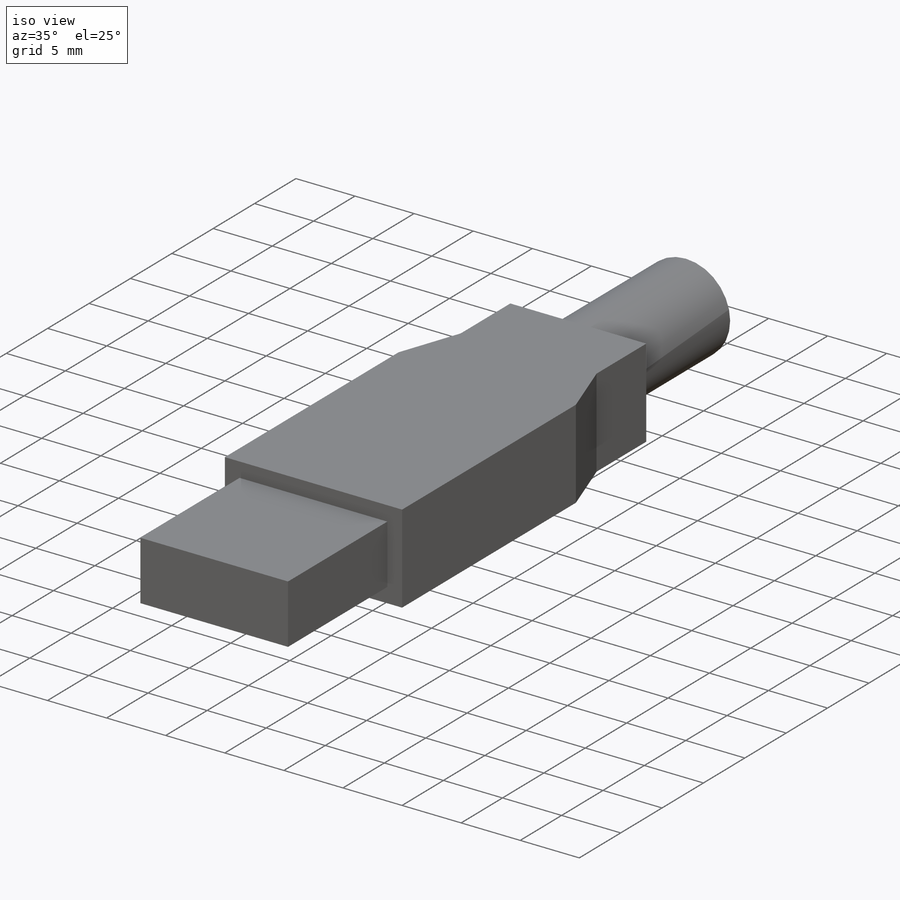
[diagram: iso view]
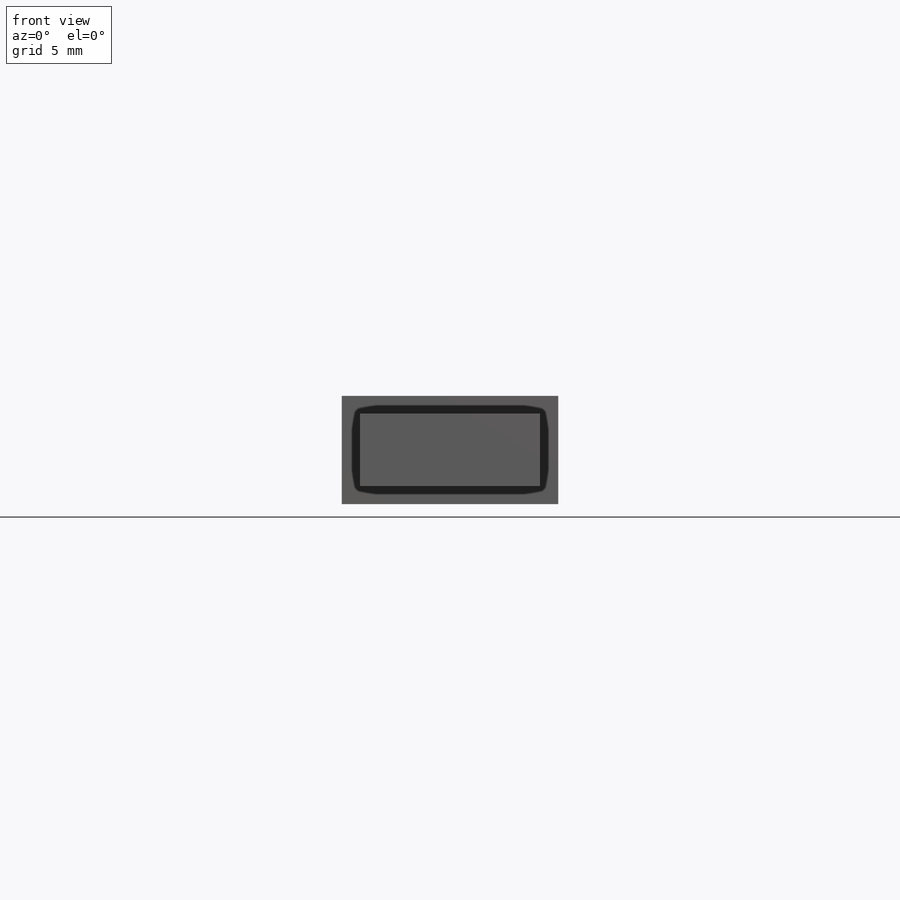
[diagram: front view]
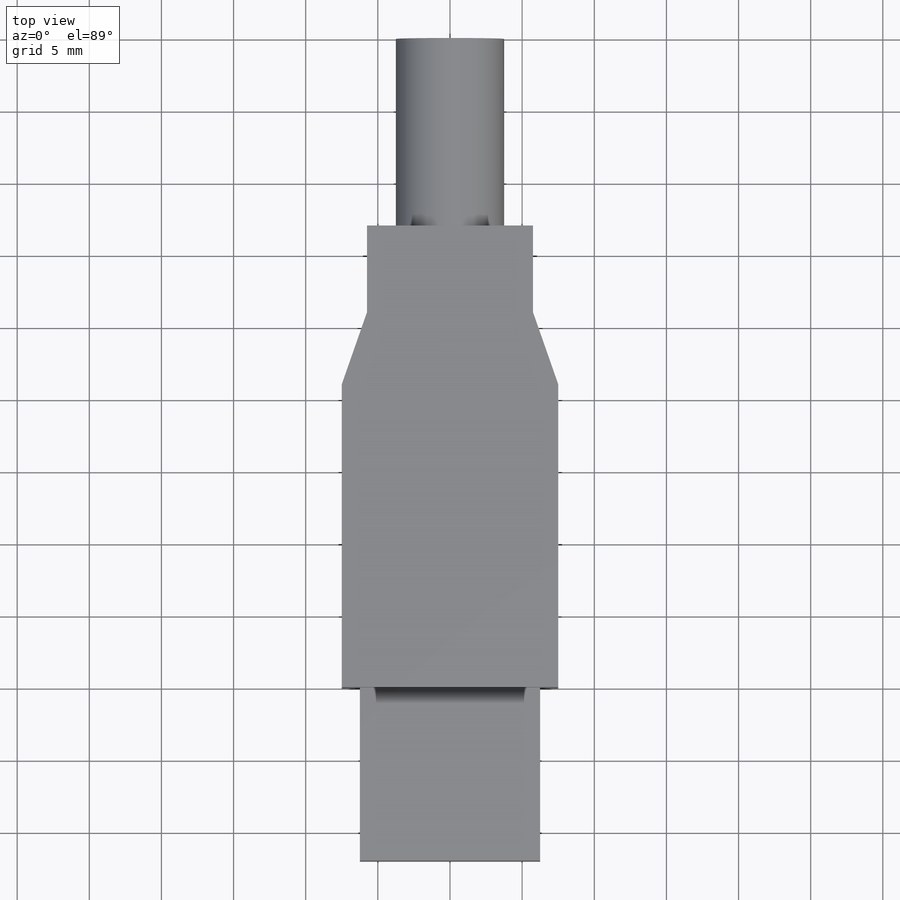
[diagram: top view]
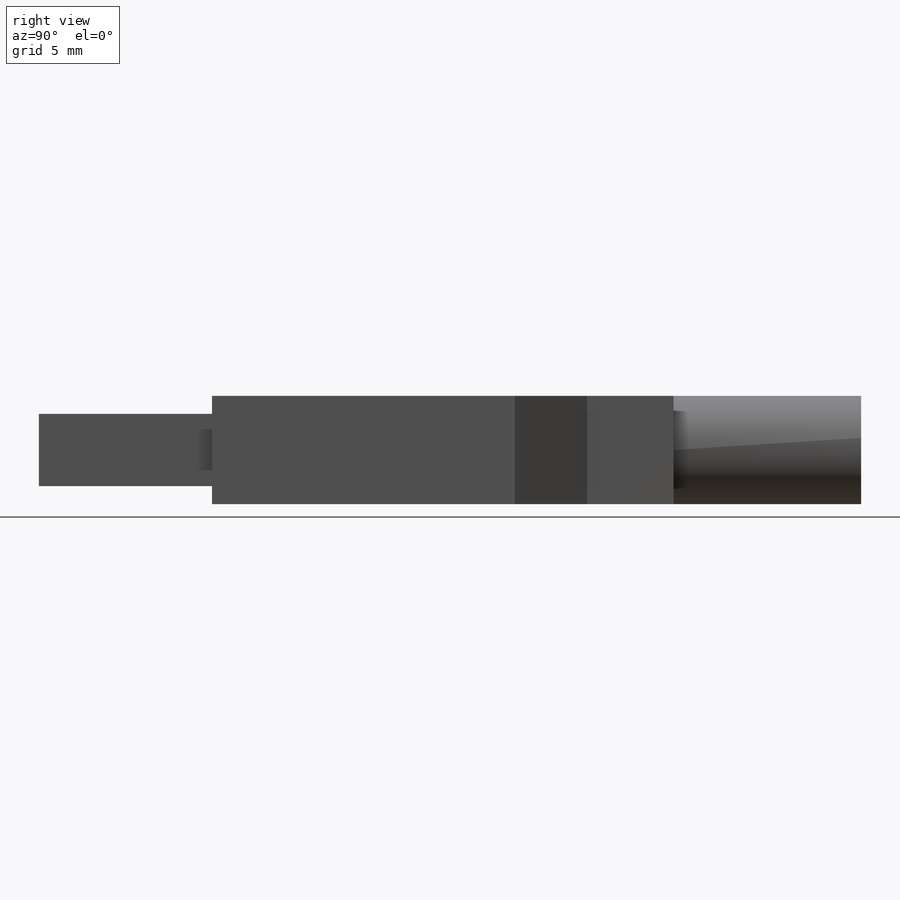
[diagram: right view]
SOLIDWORKS PART (.sldprt)
format: sldprt  version: not decoded by parser v0  size: 181,248 bytes
history: native  units: mm
features: sketch x4, extrude x4, plane x3, material x1 (+9 scaffold rows collapsed)
feature tree (21):
  scaffold x9  (default folders/planes/origin — collapsed)
  material  "Material <nicht festgelegt>"
  plane  "Vorne"
  plane  "Oben"
  plane  "Rechts"
  sketch  "Skizze1"  dims[D1=12.5mm D2=5.0mm]
  extrude  "Aufsatz-Linear austragen1"  Depth=12mm
  sketch  "Skizze2"  dims[D1=15.0mm D2=7.5mm]
  extrude  "Aufsatz-Linear austragen2"  Depth=21mm
  sketch  "Skizze3"  dims[D1=11.5mm D2=6.0mm D3=11.0mm]
  extrude  "Aufsatz-Linear austragen3"  [1 undecoded]
  sketch  "Skizze4"
  extrude  "Aufsatz-Linear austragen4"  Depth=13mm
decode coverage: 6 of 8 modeling features carry decoded parameters
note: 1 parameter value undecoded
note: suppression state not decoded; provenance and decode notes live in map.json
